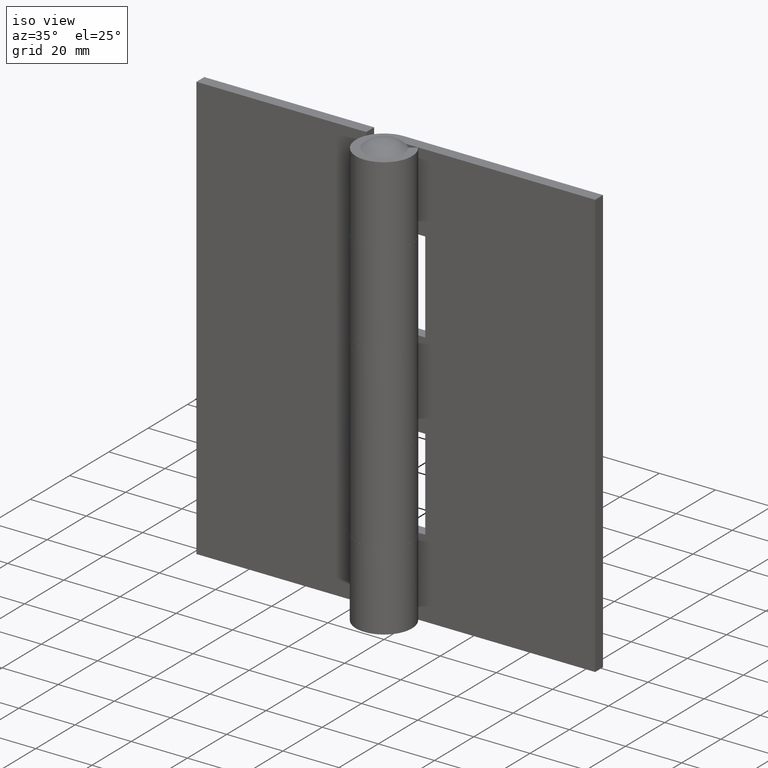
[diagram: clean part render]
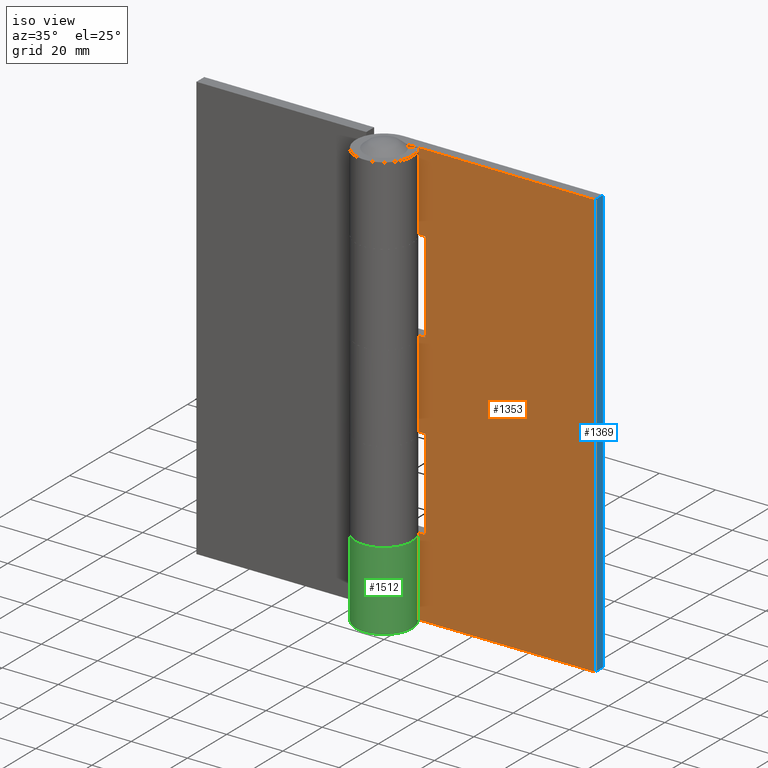
[diagram: same view with three faces highlighted in distinct colors, each labeled with its STEP entity id]
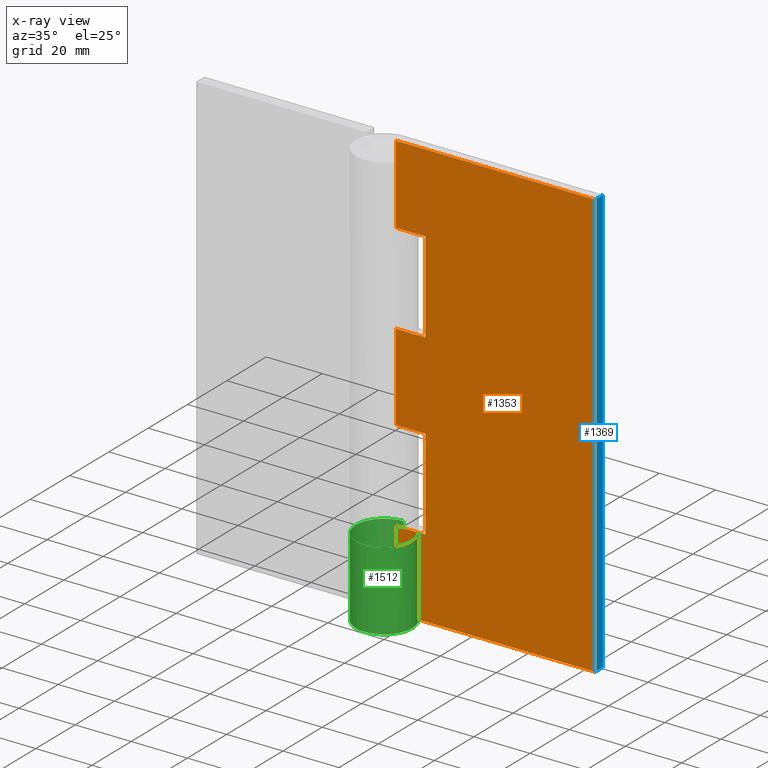
[diagram: x-ray of the same camera — body ghosted, the three highlighted faces saturated]
A machine part, iso view with three faces highlighted in distinct colors.
The next image is the same camera in x-ray (body ghosted, the three faces saturated) — at least one of them is partly hidden behind the body in this view.
Their STEP definitions:

[orange] entity #1353 — the highlighted face is a freeform B-spline surface patch.
#796=CARTESIAN_POINT('',(10.500000000000000,6.0,60.500000000000000));
#797=VERTEX_POINT('',#796);
#803=CARTESIAN_POINT('',(0.0,6.0,60.500000000000000));
#804=VERTEX_POINT('',#803);
#805=CARTESIAN_POINT('',(10.500000000000000,6.0,60.500000000000000));
#806=CARTESIAN_POINT('',(0.0,6.0,60.500000000000000));
#807=QUASI_UNIFORM_CURVE('',1,(#805,#806),.UNSPECIFIED.,.F.,.U.);
#808=EDGE_CURVE('',#797,#804,#807,.T.);
#844=CARTESIAN_POINT('',(10.500000000000000,6.0,28.0));
#845=VERTEX_POINT('',#844);
#846=CARTESIAN_POINT('',(10.500000000000000,6.0,28.0));
#847=CARTESIAN_POINT('',(10.500000000000000,6.0,60.500000000000000));
#848=QUASI_UNIFORM_CURVE('',1,(#846,#847),.UNSPECIFIED.,.F.,.U.);
#849=EDGE_CURVE('',#845,#797,#848,.T.);
#902=CARTESIAN_POINT('',(0.0,6.0,28.0));
#903=VERTEX_POINT('',#902);
#923=CARTESIAN_POINT('',(0.0,6.0,28.0));
#924=CARTESIAN_POINT('',(10.500000000000000,6.0,28.0));
#925=QUASI_UNIFORM_CURVE('',1,(#923,#924),.UNSPECIFIED.,.F.,.U.);
#926=EDGE_CURVE('',#903,#845,#925,.T.);
#972=CARTESIAN_POINT('',(0.0,6.0,91.499984999999896));
#973=VERTEX_POINT('',#972);
#993=CARTESIAN_POINT('',(10.500000000000000,6.0,91.499984999999896));
#994=VERTEX_POINT('',#993);
#995=CARTESIAN_POINT('',(0.0,6.0,91.499984999999896));
#996=CARTESIAN_POINT('',(10.500000000000000,6.0,91.499984999999896));
#997=QUASI_UNIFORM_CURVE('',1,(#995,#996),.UNSPECIFIED.,.F.,.U.);
#998=EDGE_CURVE('',#973,#994,#997,.T.);
#1020=CARTESIAN_POINT('',(10.500000000000000,6.0,123.999985000000000));
#1021=VERTEX_POINT('',#1020);
#1022=CARTESIAN_POINT('',(10.500000000000000,6.0,91.499984999999896));
#1023=CARTESIAN_POINT('',(10.500000000000000,6.0,123.999985000000000));
#1024=QUASI_UNIFORM_CURVE('',1,(#1022,#1023),.UNSPECIFIED.,.F.,.U.);
#1025=EDGE_CURVE('',#994,#1021,#1024,.T.);
#1077=CARTESIAN_POINT('',(0.0,6.0,123.999985000000000));
#1078=VERTEX_POINT('',#1077);
#1079=CARTESIAN_POINT('',(10.500000000000000,6.0,123.999985000000000));
#1080=CARTESIAN_POINT('',(0.0,6.0,123.999985000000000));
#1081=QUASI_UNIFORM_CURVE('',1,(#1079,#1080),.UNSPECIFIED.,.F.,.U.);
#1082=EDGE_CURVE('',#1021,#1078,#1081,.T.);
#1148=CARTESIAN_POINT('',(71.0,6.0,0.0));
#1149=VERTEX_POINT('',#1148);
#1155=CARTESIAN_POINT('',(0.0,6.0,0.0));
#1156=VERTEX_POINT('',#1155);
#1157=CARTESIAN_POINT('',(71.0,6.0,0.0));
#1158=CARTESIAN_POINT('',(0.0,6.0,0.0));
#1159=QUASI_UNIFORM_CURVE('',1,(#1157,#1158),.UNSPECIFIED.,.F.,.U.);
#1160=EDGE_CURVE('',#1149,#1156,#1159,.T.);
#1226=CARTESIAN_POINT('',(0.0,6.0,151.999985000000010));
#1227=VERTEX_POINT('',#1226);
#1247=CARTESIAN_POINT('',(71.0,6.0,151.999985000000010));
#1248=VERTEX_POINT('',#1247);
#1249=CARTESIAN_POINT('',(71.0,6.0,151.999985000000010));
#1250=CARTESIAN_POINT('',(0.0,6.0,151.999985000000010));
#1251=QUASI_UNIFORM_CURVE('',1,(#1249,#1250),.UNSPECIFIED.,.F.,.U.);
#1252=EDGE_CURVE('',#1248,#1227,#1251,.T.);
#1313=CARTESIAN_POINT('',(0.0,6.0,91.499984999999896));
#1314=CARTESIAN_POINT('',(0.0,6.0,60.500000000000000));
#1315=QUASI_UNIFORM_CURVE('',1,(#1313,#1314),.UNSPECIFIED.,.F.,.U.);
#1316=EDGE_CURVE('',#973,#804,#1315,.T.);
#1322=CARTESIAN_POINT('',(-3.546449862388220,6.0,159.592383956144490));
#1323=CARTESIAN_POINT('',(-3.546449862388220,6.0,-7.592403033101828));
#1324=CARTESIAN_POINT('',(74.546451766756618,6.0,159.592383956144490));
#1325=CARTESIAN_POINT('',(74.546451766756618,6.0,-7.592403033101828));
#1326=B_SPLINE_SURFACE_WITH_KNOTS('',1,1,((#1322,#1324),(#1323,#1325)),.UNSPECIFIED.,.F.,.F.,.U.,(2,2),(2,2),(0.0,167.184786989246390),(0.0,78.092901629144833),.UNSPECIFIED.);
#1327=ORIENTED_EDGE('',*,*,#926,.F.);
#1328=CARTESIAN_POINT('',(0.0,6.0,28.0));
#1329=CARTESIAN_POINT('',(0.0,6.0,0.0));
#1330=QUASI_UNIFORM_CURVE('',1,(#1328,#1329),.UNSPECIFIED.,.F.,.U.);
#1331=EDGE_CURVE('',#903,#1156,#1330,.T.);
#1332=ORIENTED_EDGE('',*,*,#1331,.T.);
#1333=ORIENTED_EDGE('',*,*,#1160,.F.);
#1334=CARTESIAN_POINT('',(71.0,6.0,151.999985000000010));
#1335=CARTESIAN_POINT('',(71.0,6.0,0.0));
#1336=QUASI_UNIFORM_CURVE('',1,(#1334,#1335),.UNSPECIFIED.,.F.,.U.);
#1337=EDGE_CURVE('',#1248,#1149,#1336,.T.);
#1338=ORIENTED_EDGE('',*,*,#1337,.F.);
#1339=ORIENTED_EDGE('',*,*,#1252,.T.);
#1340=CARTESIAN_POINT('',(0.0,6.0,151.999985000000010));
#1341=CARTESIAN_POINT('',(0.0,6.0,123.999985000000000));
#1342=QUASI_UNIFORM_CURVE('',1,(#1340,#1341),.UNSPECIFIED.,.F.,.U.);
#1343=EDGE_CURVE('',#1227,#1078,#1342,.T.);
#1344=ORIENTED_EDGE('',*,*,#1343,.T.);
#1345=ORIENTED_EDGE('',*,*,#1082,.F.);
#1346=ORIENTED_EDGE('',*,*,#1025,.F.);
#1347=ORIENTED_EDGE('',*,*,#998,.F.);
#1348=ORIENTED_EDGE('',*,*,#1316,.T.);
#1349=ORIENTED_EDGE('',*,*,#808,.F.);
#1350=ORIENTED_EDGE('',*,*,#849,.F.);
#1351=EDGE_LOOP('',(#1327,#1332,#1333,#1338,#1339,#1344,#1345,#1346,#1347,#1348,#1349,#1350));
#1352=FACE_OUTER_BOUND('',#1351,.T.);
#1353=ADVANCED_FACE('',(#1352),#1326,.T.);

[blue] entity #1369 — the highlighted face is a freeform B-spline surface patch.
#1141=CARTESIAN_POINT('',(71.0,10.0,0.0));
#1142=VERTEX_POINT('',#1141);
#1148=CARTESIAN_POINT('',(71.0,6.0,0.0));
#1149=VERTEX_POINT('',#1148);
#1150=CARTESIAN_POINT('',(71.0,10.0,0.0));
#1151=CARTESIAN_POINT('',(71.0,6.0,0.0));
#1152=QUASI_UNIFORM_CURVE('',1,(#1150,#1151),.UNSPECIFIED.,.F.,.U.);
#1153=EDGE_CURVE('',#1142,#1149,#1152,.T.);
#1247=CARTESIAN_POINT('',(71.0,6.0,151.999985000000010));
#1248=VERTEX_POINT('',#1247);
#1254=CARTESIAN_POINT('',(71.0,10.0,151.999985000000010));
#1255=VERTEX_POINT('',#1254);
#1256=CARTESIAN_POINT('',(71.0,10.0,151.999985000000010));
#1257=CARTESIAN_POINT('',(71.0,6.0,151.999985000000010));
#1258=QUASI_UNIFORM_CURVE('',1,(#1256,#1257),.UNSPECIFIED.,.F.,.U.);
#1259=EDGE_CURVE('',#1255,#1248,#1258,.T.);
#1334=CARTESIAN_POINT('',(71.0,6.0,151.999985000000010));
#1335=CARTESIAN_POINT('',(71.0,6.0,0.0));
#1336=QUASI_UNIFORM_CURVE('',1,(#1334,#1335),.UNSPECIFIED.,.F.,.U.);
#1337=EDGE_CURVE('',#1248,#1149,#1336,.T.);
#1354=CARTESIAN_POINT('',(71.0,5.800200007752776,159.592383956144490));
#1355=CARTESIAN_POINT('',(71.0,5.800200007752776,-7.592403033101828));
#1356=CARTESIAN_POINT('',(71.0,10.199800099535590,159.592383956144490));
#1357=CARTESIAN_POINT('',(71.0,10.199800099535590,-7.592403033101828));
#1358=B_SPLINE_SURFACE_WITH_KNOTS('',1,1,((#1354,#1356),(#1355,#1357)),.UNSPECIFIED.,.F.,.F.,.U.,(2,2),(2,2),(0.0,167.184786989246390),(0.0,4.399600091782808),.UNSPECIFIED.);
#1359=ORIENTED_EDGE('',*,*,#1153,.F.);
#1360=CARTESIAN_POINT('',(71.0,10.0,151.999985000000010));
#1361=CARTESIAN_POINT('',(71.0,10.0,0.0));
#1362=QUASI_UNIFORM_CURVE('',1,(#1360,#1361),.UNSPECIFIED.,.F.,.U.);
#1363=EDGE_CURVE('',#1255,#1142,#1362,.T.);
#1364=ORIENTED_EDGE('',*,*,#1363,.F.);
#1365=ORIENTED_EDGE('',*,*,#1259,.T.);
#1366=ORIENTED_EDGE('',*,*,#1337,.T.);
#1367=EDGE_LOOP('',(#1359,#1364,#1365,#1366));
#1368=FACE_OUTER_BOUND('',#1367,.T.);
#1369=ADVANCED_FACE('',(#1368),#1358,.T.);

[green] entity #1512 — the highlighted face is a freeform B-spline surface patch.
#872=CARTESIAN_POINT('',(0.0,10.0,28.0));
#873=VERTEX_POINT('',#872);
#874=CARTESIAN_POINT('',(8.037256994771289,5.950000000000000,28.0));
#875=VERTEX_POINT('',#874);
#876=CARTESIAN_POINT('',(0.0,10.0,28.0));
#877=CARTESIAN_POINT('',(-7.901514758761130,10.0,27.999999999999996));
#878=CARTESIAN_POINT('',(-9.728896532943979,2.312698045848316,28.0));
#879=CARTESIAN_POINT('',(-11.556278307126828,-5.374603908303364,27.999999999999996));
#880=CARTESIAN_POINT('',(-4.500000000000004,-8.930285549745873,28.0));
#881=CARTESIAN_POINT('',(2.556278307126817,-12.485967191188383,27.999999999999996));
#882=CARTESIAN_POINT('',(7.647468291680487,-6.443308833801273,28.0));
#883=CARTESIAN_POINT('',(12.738658276234160,-0.400650476414158,27.999999999999996));
#884=CARTESIAN_POINT('',(8.037256994771294,5.949999999999993,28.0));
#892=(BOUNDED_CURVE()B_SPLINE_CURVE(2,(#876,#877,#878,#879,#880,#881,#882,#883,#884),.UNSPECIFIED.,.F.,.U.)B_SPLINE_CURVE_WITH_KNOTS((3,2,2,2,3),(0.0,0.250000000000000,0.500000000000000,0.750000000000000,1.0),.UNSPECIFIED.)CURVE()GEOMETRIC_REPRESENTATION_ITEM()RATIONAL_B_SPLINE_CURVE((1.0,0.784624051563815,1.0,0.784624051563815,1.0,0.784624051563815,1.0,0.784624051563815,1.0))REPRESENTATION_ITEM(''));
#893=EDGE_CURVE('',#873,#875,#892,.T.);
#1118=CARTESIAN_POINT('',(8.037256994771289,5.950000000000000,0.0));
#1119=VERTEX_POINT('',#1118);
#1120=CARTESIAN_POINT('',(0.0,10.0,0.0));
#1121=VERTEX_POINT('',#1120);
#1122=CARTESIAN_POINT('',(8.037256994771289,5.949999999999998,0.0));
#1123=CARTESIAN_POINT('',(12.738658276234162,-0.400650476414151,0.0));
#1124=CARTESIAN_POINT('',(7.647468291680491,-6.443308833801269,0.0));
#1125=CARTESIAN_POINT('',(2.556278307126820,-12.485967191188388,0.0));
#1126=CARTESIAN_POINT('',(-4.500000000000006,-8.930285549745872,0.0));
#1127=CARTESIAN_POINT('',(-11.556278307126822,-5.374603908303364,0.0));
#1128=CARTESIAN_POINT('',(-9.728896532943981,2.312698045848309,0.0));
#1129=CARTESIAN_POINT('',(-7.901514758761137,9.999999999999998,0.0));
#1130=CARTESIAN_POINT('',(0.0,10.0,0.0));
#1138=(BOUNDED_CURVE()B_SPLINE_CURVE(2,(#1122,#1123,#1124,#1125,#1126,#1127,#1128,#1129,#1130),.UNSPECIFIED.,.F.,.U.)B_SPLINE_CURVE_WITH_KNOTS((3,2,2,2,3),(0.0,0.250000000000000,0.500000000000000,0.750000000000000,1.0),.UNSPECIFIED.)CURVE()GEOMETRIC_REPRESENTATION_ITEM()RATIONAL_B_SPLINE_CURVE((1.0,0.784624051563815,1.0,0.784624051563815,1.0,0.784624051563815,1.0,0.784624051563815,1.0))REPRESENTATION_ITEM(''));
#1139=EDGE_CURVE('',#1119,#1121,#1138,.T.);
#1394=CARTESIAN_POINT('',(0.0,10.0,28.0));
#1395=CARTESIAN_POINT('',(0.0,10.0,0.0));
#1396=QUASI_UNIFORM_CURVE('',1,(#1394,#1395),.UNSPECIFIED.,.F.,.U.);
#1397=EDGE_CURVE('',#873,#1121,#1396,.T.);
#1480=CARTESIAN_POINT('',(0.346791584391351,9.993984970820963,28.699999999999999));
#1481=CARTESIAN_POINT('',(0.346791584391351,9.993984970820963,-0.717500000000001));
#1482=CARTESIAN_POINT('',(-12.521910133312209,10.440529314320763,28.699999999999999));
#1483=CARTESIAN_POINT('',(-12.521910133312209,10.440529314320763,-0.717500000000001));
#1484=CARTESIAN_POINT('',(-9.768743568082419,-2.138141506319986,28.699999999999999));
#1485=CARTESIAN_POINT('',(-9.768743568082419,-2.138141506319986,-0.717500000000001));
#1486=CARTESIAN_POINT('',(-7.015577002852631,-14.716812326960735,28.699999999999999));
#1487=CARTESIAN_POINT('',(-7.015577002852631,-14.716812326960735,-0.717500000000001));
#1488=CARTESIAN_POINT('',(4.489961900186806,-8.935336710772058,28.699999999999999));
#1489=CARTESIAN_POINT('',(4.489961900186806,-8.935336710772058,-0.717500000000001));
#1490=CARTESIAN_POINT('',(15.995500803226243,-3.153861094583382,28.699999999999999));
#1491=CARTESIAN_POINT('',(15.995500803226243,-3.153861094583382,-0.717500000000001));
#1492=CARTESIAN_POINT('',(7.545649194174652,6.562254051654151,28.699999999999999));
#1493=CARTESIAN_POINT('',(7.545649194174652,6.562254051654151,-0.717500000000001));
#1501=(BOUNDED_SURFACE()B_SPLINE_SURFACE(1,2,((#1480,#1482,#1484,#1486,#1488,#1490,#1492),(#1481,#1483,#1485,#1487,#1489,#1491,#1493)),.UNSPECIFIED.,.F.,.F.,.U.)B_SPLINE_SURFACE_WITH_KNOTS((2,2),(3,2,2,3),(0.0,29.417500000000000),(0.0,19.581371835351231,39.162743670702469,58.744115506053703),.UNSPECIFIED.)GEOMETRIC_REPRESENTATION_ITEM()RATIONAL_B_SPLINE_SURFACE(((1.0,0.613366643455859,1.0,0.613366643455859,1.0,0.613366643455859,1.0),(1.0,0.613366643455859,1.0,0.613366643455859,1.0,0.613366643455859,1.0)))REPRESENTATION_ITEM('')SURFACE());
#1502=CARTESIAN_POINT('',(8.037256994771289,5.950000000000000,28.0));
#1503=CARTESIAN_POINT('',(8.037256994771289,5.950000000000000,0.0));
#1504=QUASI_UNIFORM_CURVE('',1,(#1502,#1503),.UNSPECIFIED.,.F.,.U.);
#1505=EDGE_CURVE('',#875,#1119,#1504,.T.);
#1506=ORIENTED_EDGE('',*,*,#1505,.F.);
#1507=ORIENTED_EDGE('',*,*,#893,.F.);
#1508=ORIENTED_EDGE('',*,*,#1397,.T.);
#1509=ORIENTED_EDGE('',*,*,#1139,.F.);
#1510=EDGE_LOOP('',(#1506,#1507,#1508,#1509));
#1511=FACE_OUTER_BOUND('',#1510,.T.);
#1512=ADVANCED_FACE('',(#1511),#1501,.T.);